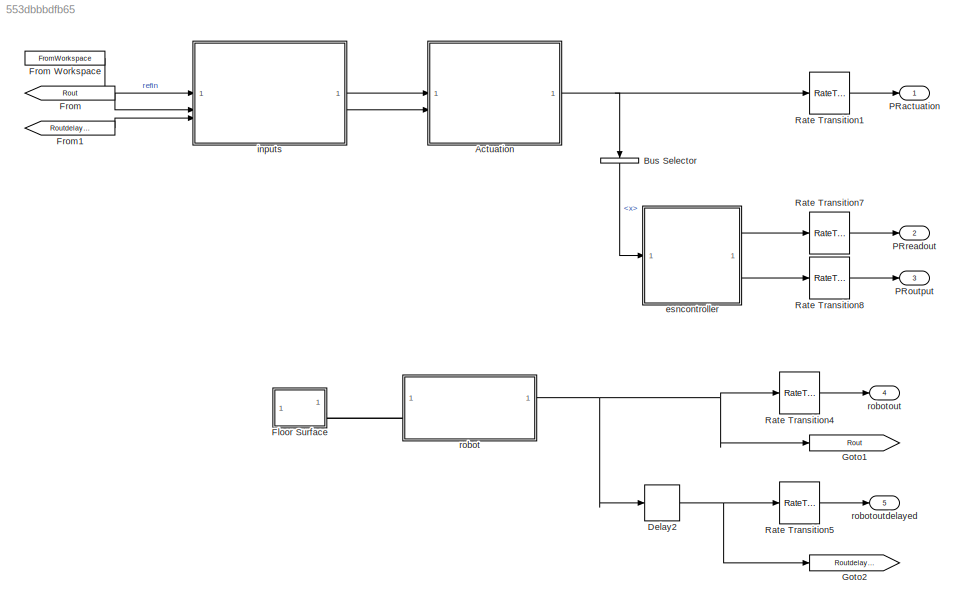
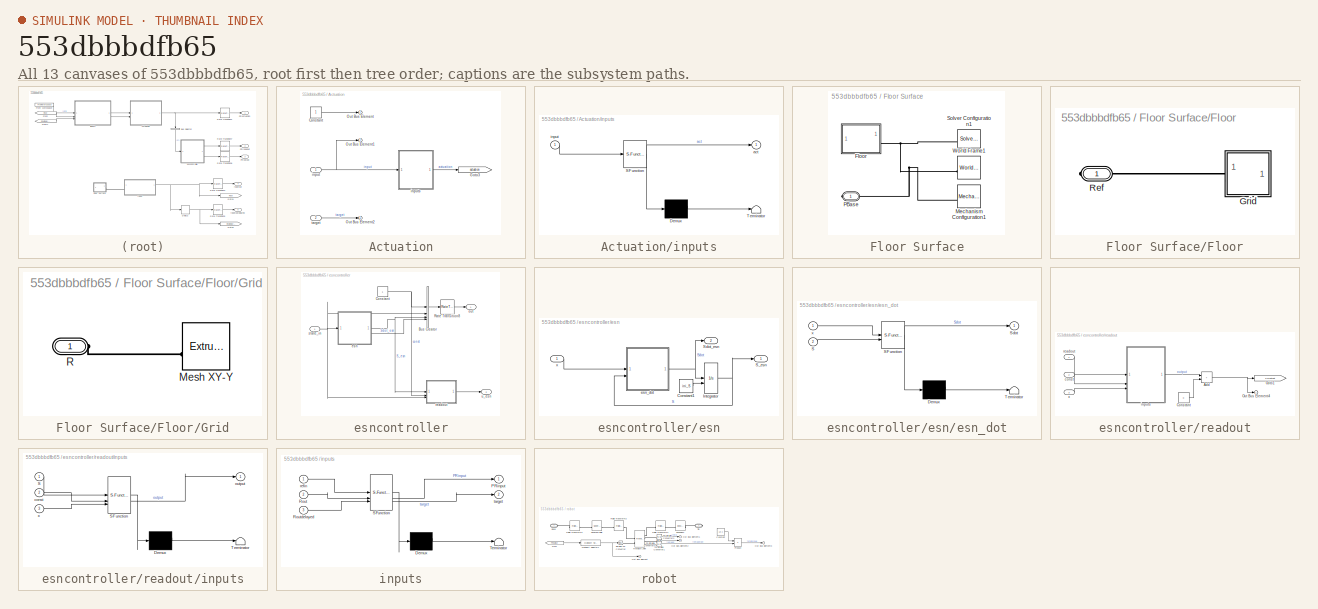
[diagram: thumbnail index - all 13 canvases of the model, root first then tree order]
MODEL slx_553dbbbdfb65
KIND model
CONFIG AbsTol = auto
CONFIG EnableMultiTasking = off
CONFIG FixedStep = auto
CONFIG MaxStep = auto
CONFIG MinStep = auto
CONFIG RelTol = 1e-3
CONFIG SampleTimeConstraint = Unconstrained
CONFIG SolverName = VariableStepAuto
CONFIG StartTime = 0.0
CONFIG StopTime = stoptime
BLOCK [SubSystem] Actuation
BLOCK [Constant] Actuation/Constant
BLOCK [Goto] Actuation/Goto3
  GotoTag = actuation
  TagVisibility = global
BLOCK [Outport] Actuation/Out Bus Element
BLOCK [Outport] Actuation/Out Bus Element1
BLOCK [Outport] Actuation/Out Bus Element2
BLOCK [Inport] Actuation/input
BLOCK [SubSystem] Actuation/inputs
  ErrorFcn = Stateflow.Translate.translate
  LibrarySourceBlock = simulink/User-Defined\nFunctions/MATLAB Function
  PermitHierarchicalResolution = ExplicitOnly
  SFBlockType = MATLAB Function
  TreatAsAtomicUnit = on
BLOCK [Demux] Actuation/inputs/ Demux 
  Outputs = 1
BLOCK [S-Function] Actuation/inputs/ SFunction 
  EnableBusSupport = on
  FunctionName = sf_sfun
  Parameters = Win,amp_factor,xnorm
  PortCounts = [1 2]
  SFcnIsStateOwnerBlock = off
  SFunctionDeploymentMode = off
  Tag = Stateflow S-Function 1
BLOCK [Terminator] Actuation/inputs/ Terminator 
BLOCK [Outport] Actuation/inputs/act
BLOCK [Inport] Actuation/inputs/input
BLOCK [Inport] Actuation/target
  Port = 2
BLOCK [BusSelector] Bus Selector
  NameLocation = left
  OutputSignals = x
BLOCK [Delay] Delay2
  DelayLength = rc.delaylen/samplingrate*1
  InitialCondition = 0
  InputPortMap = u0
BLOCK [SubSystem] Floor Surface
BLOCK [SubSystem] Floor Surface/Floor
BLOCK [SubSystem] Floor Surface/Floor/Grid
BLOCK [Reference] Floor Surface/Floor/Grid/Mesh XY-Y  REF=sm_lib/Body Elements/Extruded Solid
  SourceBlock = sm_lib/Body Elements/Extruded Solid
  SourceType = Extruded Solid
BLOCK [PMIOPort] Floor Surface/Floor/Grid/R
  Side = Left
BLOCK [PMIOPort] Floor Surface/Floor/Ref
  NameLocation = top
  Side = Right
BLOCK [Reference] Floor Surface/Mechanism Configuration1  REF=sm_lib/Utilities/Mechanism
Configuration
  NameLocation = top
  SourceBlock = sm_lib/Utilities/Mechanism\nConfiguration
  SourceType = Mechanism\nConfiguration
BLOCK [PMIOPort] Floor Surface/PBase
  Side = Right
BLOCK [Reference] Floor Surface/Solver Configuration1  REF=nesl_utility/Solver
Configuration
  NameLocation = top
  SourceBlock = nesl_utility/Solver\nConfiguration
  SourceType = Solver\nConfiguration
BLOCK [Reference] Floor Surface/World Frame1  REF=sm_lib/Frames and
Transforms/World Frame
  NameLocation = top
  SourceBlock = sm_lib/Frames and\nTransforms/World Frame
  SourceType = World Frame
BLOCK [From] From
  GotoTag = Rout
  TagVisibility = global
BLOCK [FromWorkspace] From Workspace
  OutDataTypeStr = Bus: SinusoidBus
  OutputAfterFinalValue = Holding final value
  VariableName = busin
BLOCK [From] From1
  GotoTag = Routdelayed
  TagVisibility = global
BLOCK [Goto] Goto1
  GotoTag = Rout
  TagVisibility = global
BLOCK [Goto] Goto2
  GotoTag = Routdelayed
  TagVisibility = global
BLOCK [Outport] PRactuation
BLOCK [Outport] PRoutput
  Port = 3
BLOCK [Outport] PRreadout
  Port = 2
BLOCK [RateTransition] Rate Transition1
  OutPortSampleTime = samplingrate
BLOCK [RateTransition] Rate Transition4
  OutPortSampleTime = samplingrate
BLOCK [RateTransition] Rate Transition5
  OutPortSampleTime = samplingrate
BLOCK [RateTransition] Rate Transition7
  OutPortSampleTime = samplingrate
BLOCK [RateTransition] Rate Transition8
  OutPortSampleTime = samplingrate
BLOCK [SubSystem] esncontroller
BLOCK [BusCreator] esncontroller/Bus Creator
  DisplayOption = bar
  InheritFromInputs = on
  Inputs = 4
BLOCK [Constant] esncontroller/Constant
BLOCK [RateTransition] esncontroller/Rate Transition8
  OutPortSampleTime = timestep
BLOCK [SubSystem] esncontroller/esn
BLOCK [Constant] esncontroller/esn/Constant1
  Value = ini_S
  VectorParams1D = off
BLOCK [Integrator] esncontroller/esn/Integrator
  InitialConditionSource = external
BLOCK [Outport] esncontroller/esn/S_esn
BLOCK [Outport] esncontroller/esn/Sdot_esn
  Port = 2
BLOCK [SubSystem] esncontroller/esn/esn_dot
  ErrorFcn = Stateflow.Translate.translate
  LibrarySourceBlock = simulink/User-Defined\nFunctions/MATLAB Function
  PermitHierarchicalResolution = ExplicitOnly
  SFBlockType = MATLAB Function
  TreatAsAtomicUnit = on
BLOCK [Demux] esncontroller/esn/esn_dot/ Demux 
  Outputs = 1
BLOCK [S-Function] esncontroller/esn/esn_dot/ SFunction 
  EnableBusSupport = on
  FunctionName = sf_sfun
  Parameters = Nr,Wb,Win,Wr,nodenuminput,sizeinput,tau
  PortCounts = [2 2]
  SFcnIsStateOwnerBlock = off
  SFunctionDeploymentMode = off
  Tag = Stateflow S-Function 4
BLOCK [Terminator] esncontroller/esn/esn_dot/ Terminator 
BLOCK [Inport] esncontroller/esn/esn_dot/S
  Port = 2
BLOCK [Outport] esncontroller/esn/esn_dot/Sdot
BLOCK [Inport] esncontroller/esn/esn_dot/x
BLOCK [Inport] esncontroller/esn/x
BLOCK [Outport] esncontroller/out
BLOCK [SubSystem] esncontroller/readout
BLOCK [Sum] esncontroller/readout/Add
  IconShape = rectangular
BLOCK [Constant] esncontroller/readout/Constant
  Value = 0
BLOCK [Goto] esncontroller/readout/Goto1
  GotoTag = PRoutput
  TagVisibility = global
BLOCK [Outport] esncontroller/readout/Out Bus Element4
BLOCK [Inport] esncontroller/readout/const
  Port = 2
BLOCK [SubSystem] esncontroller/readout/inputs
  ErrorFcn = Stateflow.Translate.translate
  LibrarySourceBlock = simulink/User-Defined\nFunctions/MATLAB Function
  PermitHierarchicalResolution = ExplicitOnly
  SFBlockType = MATLAB Function
  TreatAsAtomicUnit = on
BLOCK [Demux] esncontroller/readout/inputs/ Demux 
  Outputs = 1
BLOCK [S-Function] esncontroller/readout/inputs/ SFunction 
  EnableBusSupport = on
  FunctionName = sf_sfun
  Parameters = Woutmat
  PortCounts = [3 2]
  SFcnIsStateOwnerBlock = off
  SFunctionDeploymentMode = off
  Tag = Stateflow S-Function 6
BLOCK [Terminator] esncontroller/readout/inputs/ Terminator 
BLOCK [Inport] esncontroller/readout/inputs/S
BLOCK [Inport] esncontroller/readout/inputs/const
  Port = 2
BLOCK [Outport] esncontroller/readout/inputs/output
BLOCK [Inport] esncontroller/readout/inputs/x
  Port = 3
BLOCK [Inport] esncontroller/readout/readout
BLOCK [Inport] esncontroller/readout/x
  Port = 3
BLOCK [Inport] esncontroller/state_in
BLOCK [Outport] esncontroller/u_esn
  Port = 2
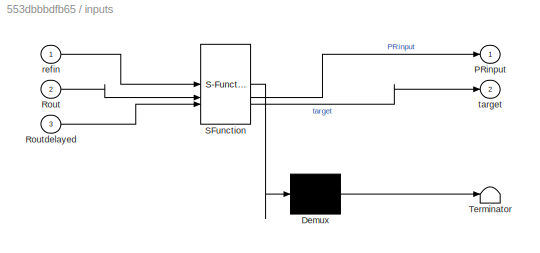
BLOCK [SubSystem] inputs
  ErrorFcn = Stateflow.Translate.translate
  LibrarySourceBlock = simulink/User-Defined\nFunctions/MATLAB Function
  PermitHierarchicalResolution = ExplicitOnly
  SFBlockType = MATLAB Function
  TreatAsAtomicUnit = on
BLOCK [Demux] inputs/ Demux 
  Outputs = 1
BLOCK [S-Function] inputs/ SFunction 
  EnableBusSupport = on
  FunctionName = sf_sfun
  Parameters = iscontrol
  PortCounts = [3 3]
  SFcnIsStateOwnerBlock = off
  SFunctionDeploymentMode = off
  Tag = Stateflow S-Function 3
BLOCK [Terminator] inputs/ Terminator 
BLOCK [Outport] inputs/PRinput
BLOCK [Inport] inputs/Rout
  Port = 2
BLOCK [Inport] inputs/Routdelayed
  Port = 3
BLOCK [Inport] inputs/refin
BLOCK [Outport] inputs/target
  Port = 2
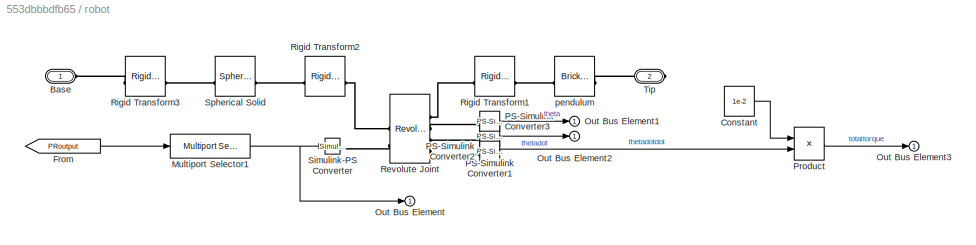
BLOCK [SubSystem] robot
BLOCK [PMIOPort] robot/Base
  Side = Left
BLOCK [Constant] robot/Constant
  Value = 1e-2
BLOCK [From] robot/From
  GotoTag = PRoutput
  TagVisibility = global
BLOCK [Reference] robot/Multiport Selector1  REF=dspindex/Multiport
Selector
  SourceBlock = dspindex/Multiport\nSelector
  SourceType = Multiport Selector
BLOCK [Outport] robot/Out Bus Element
BLOCK [Outport] robot/Out Bus Element1
BLOCK [Outport] robot/Out Bus Element2
BLOCK [Outport] robot/Out Bus Element3
BLOCK [Reference] robot/PS-Simulink Converter1  REF=nesl_utility/PS-Simulink
Converter
  SourceBlock = nesl_utility/PS-Simulink\nConverter
  SourceType = PS-Simulink\nConverter
BLOCK [Reference] robot/PS-Simulink Converter2  REF=nesl_utility/PS-Simulink
Converter
  SourceBlock = nesl_utility/PS-Simulink\nConverter
  SourceType = PS-Simulink\nConverter
BLOCK [Reference] robot/PS-Simulink Converter3  REF=nesl_utility/PS-Simulink
Converter
  SourceBlock = nesl_utility/PS-Simulink\nConverter
  SourceType = PS-Simulink\nConverter
BLOCK [Product] robot/Product
BLOCK [Reference] robot/Revolute Joint  REF=sm_lib/Joints/Revolute Joint
  SourceBlock = sm_lib/Joints/Revolute Joint
  SourceType = Revolute Joint
BLOCK [Reference] robot/Rigid Transform1  REF=sm_lib/Frames and
Transforms/Rigid
Transform
  SourceBlock = sm_lib/Frames and\nTransforms/Rigid\nTransform
  SourceType = Rigid\nTransform
BLOCK [Reference] robot/Rigid Transform2  REF=sm_lib/Frames and
Transforms/Rigid
Transform
  SourceBlock = sm_lib/Frames and\nTransforms/Rigid\nTransform
  SourceType = Rigid\nTransform
BLOCK [Reference] robot/Rigid Transform3  REF=sm_lib/Frames and
Transforms/Rigid
Transform
  SourceBlock = sm_lib/Frames and\nTransforms/Rigid\nTransform
  SourceType = Rigid\nTransform
BLOCK [Reference] robot/Simulink-PS Converter  REF=nesl_utility/Simulink-PS
Converter
  SourceBlock = nesl_utility/Simulink-PS\nConverter
  SourceType = Simulink-PS\nConverter
BLOCK [Reference] robot/Spherical Solid  REF=sm_lib/Body Elements/Spherical Solid
  SourceBlock = sm_lib/Body Elements/Spherical Solid
  SourceType = Spherical Solid
BLOCK [PMIOPort] robot/Tip
  Port = 2
  Side = Right
BLOCK [Reference] robot/pendulum  REF=sm_lib/Body Elements/Brick Solid
  SourceBlock = sm_lib/Body Elements/Brick Solid
  SourceType = Brick Solid
BLOCK [Outport] robotout
  Port = 4
BLOCK [Outport] robotoutdelayed
  Port = 5
LINE Actuation/Constant:1 -> Actuation/Out Bus Element:1
NET Actuation/input:1 -> Actuation/Out Bus Element1:1, Actuation/inputs:1
LINE Actuation/inputs:1 -> Actuation/Goto3:1
LINE Actuation/target:1 -> Actuation/Out Bus Element2:1
NET Actuation:1 -> Bus Selector:1, Rate Transition1:1
LINE Bus Selector:1 -> esncontroller:1
NET Delay2:1 -> Goto2:1, Rate Transition5:1
LINE From Workspace:1 -> inputs:1
LINE From1:1 -> inputs:3
LINE From:1 -> inputs:2
LINE Rate Transition1:1 -> PRactuation:1
LINE Rate Transition4:1 -> robotout:1
LINE Rate Transition5:1 -> robotoutdelayed:1
LINE Rate Transition7:1 -> PRreadout:1
LINE Rate Transition8:1 -> PRoutput:1
LINE esncontroller/Bus Creator:1 -> esncontroller/Rate Transition8:1
NET esncontroller/Constant:1 -> esncontroller/Bus Creator:1, esncontroller/readout:2
LINE esncontroller/Rate Transition8:1 -> esncontroller/out:1
LINE esncontroller/esn/Constant1:1 -> esncontroller/esn/Integrator:2
NET esncontroller/esn/Integrator:1 -> esncontroller/esn/S_esn:1, esncontroller/esn/esn_dot:2
NET esncontroller/esn/esn_dot:1 -> esncontroller/esn/Integrator:1, esncontroller/esn/Sdot_esn:1
LINE esncontroller/esn/x:1 -> esncontroller/esn/esn_dot:1
NET esncontroller/esn:1 -> esncontroller/Bus Creator:3, esncontroller/readout:1
LINE esncontroller/esn:2 -> esncontroller/Bus Creator:4
NET esncontroller/readout/Add:1 -> esncontroller/readout/Goto1:1, esncontroller/readout/Out Bus Element4:1
LINE esncontroller/readout/Constant:1 -> esncontroller/readout/Add:2
LINE esncontroller/readout/const:1 -> esncontroller/readout/inputs:2
LINE esncontroller/readout/inputs:1 -> esncontroller/readout/Add:1
LINE esncontroller/readout/readout:1 -> esncontroller/readout/inputs:1
LINE esncontroller/readout/x:1 -> esncontroller/readout/inputs:3
LINE esncontroller/readout:1 -> esncontroller/u_esn:1
NET esncontroller/state_in:1 -> esncontroller/Bus Creator:2, esncontroller/esn:1, esncontroller/readout:3
LINE esncontroller:1 -> Rate Transition7:1
LINE esncontroller:2 -> Rate Transition8:1
LINE inputs:1 -> Actuation:1
LINE inputs:2 -> Actuation:2
LINE robot/Constant:1 -> robot/Product:1
LINE robot/From:1 -> robot/Multiport Selector1:1
NET robot/Multiport Selector1:1 -> robot/Out Bus Element:1, robot/Simulink-PS Converter:1
LINE robot/PS-Simulink Converter1:1 -> robot/Out Bus Element2:1
LINE robot/PS-Simulink Converter2:1 -> robot/Product:2
LINE robot/PS-Simulink Converter3:1 -> robot/Out Bus Element1:1
LINE robot/Product:1 -> robot/Out Bus Element3:1
NET robot:1 -> Delay2:1, Goto1:1, Rate Transition4:1
PLINE Floor Surface/Floor/Grid/Mesh XY-Y:RConn1 -- Floor Surface/Floor/Grid/R:RConn1
PLINE Floor Surface/Floor/Grid:LConn1 -- Floor Surface/Floor/Ref:RConn1
PNET net1: Floor Surface/Floor:RConn1 -- Floor Surface/Mechanism Configuration1:RConn1 -- Floor Surface/PBase:RConn1 -- Floor Surface/Solver Configuration1:RConn1 -- Floor Surface/World Frame1:RConn1
PLINE Floor Surface:RConn1 -- robot:LConn1
PLINE robot/Base:RConn1 -- robot/Rigid Transform3:LConn1
PLINE robot/PS-Simulink Converter1:LConn1 -- robot/Revolute Joint:RConn3
PLINE robot/PS-Simulink Converter2:LConn1 -- robot/Revolute Joint:RConn4
PLINE robot/PS-Simulink Converter3:LConn1 -- robot/Revolute Joint:RConn2
PLINE robot/Revolute Joint:LConn1 -- robot/Rigid Transform2:RConn1
PLINE robot/Revolute Joint:LConn2 -- robot/Simulink-PS Converter:RConn1
PLINE robot/Revolute Joint:RConn1 -- robot/Rigid Transform1:LConn1
PLINE robot/Rigid Transform1:RConn1 -- robot/pendulum:LConn1
PLINE robot/Rigid Transform2:LConn1 -- robot/Spherical Solid:RConn1
PLINE robot/Rigid Transform3:RConn1 -- robot/Spherical Solid:LConn1
PLINE robot/Tip:RConn1 -- robot/pendulum:RConn1
note: NET lines group one-source signal fan-out (src -> all destinations, sorted); 1:1 wires keep LINE; PNET lines group multi-terminal physical nets as a canonical sorted terminal list (undirected conserving connections); 2-terminal nets keep the pairwise PLINE form
CHART Actuation/inputs states=1 transitions=1
  STATE_LABEL 'eML_blk_kernel()'
  STATE_LABEL 'SCRIPT:\nfunction act = fcn(input, Win, xnorm, amp_factor)\n\ninput = input(1:2)./xnorm(1:2);\ninputmat = amp_factor.*[input 0.*input];\n\nact = Win*inputmat;\nend'
CHART inputs states=1 transitions=1
  STATE_LABEL 'eML_blk_kernel()'
  STATE_LABEL 'SCRIPT:\nfunction [PRinput,target] = fcn(refin, Rout, Routdelayed,iscontrol)\n\nif iscontrol\n    PRinput = [Rout(1);\n        Rout(2);\n        refin.x1;\n        refin.x2];\nelse\n    PRinput = [Routdelayed(1);\n        Routdelayed(2);\n        Rout(1);\n        Rout(2)];\nend\ntarget = [Routdelayed(3)];\n\nend'
CHART esncontroller/esn/esn_dot states=1 transitions=1
  STATE_LABEL 'eML_blk_kernel()'
  STATE_LABEL 'SCRIPT:\nfunction Sdot = fcn(x, S, Nr, sizeinput, nodenuminput, Win, Wr, Wb, tau)\n\nx = x(1:2);\nu = zeros(Nr, 1);\n% \n% for i = 1:Nr\n%     u(i) = x(mod(i-1, 2) + 1);\n% end\n% %u = [x(1); 0; x(2); 0];\n\nu(1:Nr/2) = x(1);\nu(Nr/2+1:Nr) = x(2);\n\nSdot = (-S + tanh(Win.*u + Wr*S + Wb))/tau;\n\nend'
CHART esncontroller/readout/inputs states=1 transitions=1
  STATE_LABEL 'eML_blk_kernel()'
  STATE_LABEL 'SCRIPT:\nfunction output = fcn(S, const, x, Woutmat)\n\nreadoutt = [const; x; S];\n\noutput = Woutmat*readoutt;\n\nend'
CHART  states=0 transitions=0
CHART  states=0 transitions=0
CHART  states=0 transitions=0
CHART  states=0 transitions=0
